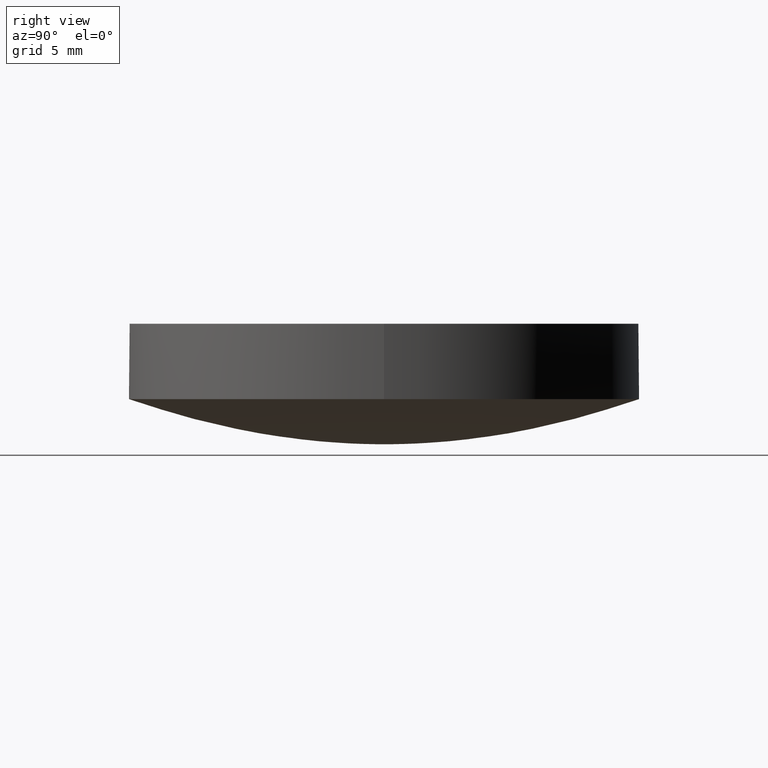
[diagram: clean part render]
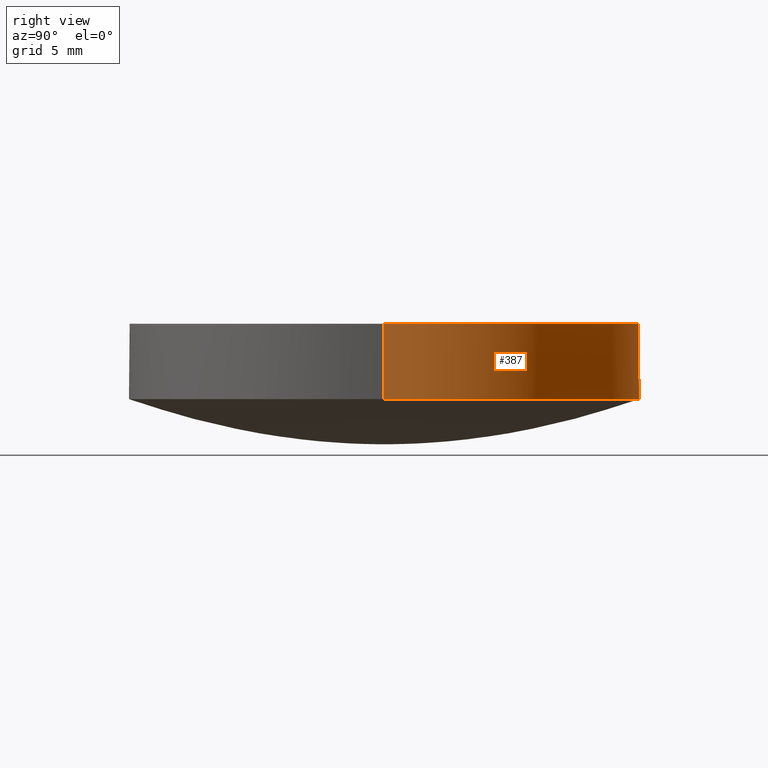
[diagram: same view with one face highlighted and labeled with its STEP entity id]
A machine part, right view. The second image highlights one B-rep face of the part: STEP entity #387.
In plain terms, the highlighted cylindrical surface (partial cylindrical patch) has radius 12.7 mm, axis along (0, 0, 1).
Its self-contained STEP definition (entity closure, byte-faithful):
#3 = EDGE_CURVE ( 'NONE', #450, #67, #276, .T. ) ;
#12 = DIRECTION ( 'NONE',  ( 6.993530863780509846E-17, 4.890947394265059749E-33, 1.000000000000000000 ) ) ;
#26 = CARTESIAN_POINT ( 'NONE',  ( 1.150626804807467557E-15, -8.881784197001250351E-16, 5.999999999999999112 ) ) ;
#54 = CARTESIAN_POINT ( 'NONE',  ( 12.70000000000000107, -8.881784197001250351E-16, 2.247269223239399150 ) ) ;
#57 = DIRECTION ( 'NONE',  ( 6.993530863780509846E-17, 4.890947394265059749E-33, 1.000000000000000000 ) ) ;
#67 = VERTEX_POINT ( 'NONE', #406 ) ;
#75 = DIRECTION ( 'NONE',  ( 6.993530863780509846E-17, 4.890947394265059749E-33, 1.000000000000000000 ) ) ;
#93 = DIRECTION ( 'NONE',  ( 1.000000000000000000, 0.000000000000000000, -6.829619984160658046E-17 ) ) ;
#112 = VERTEX_POINT ( 'NONE', #230 ) ;
#128 = VECTOR ( 'NONE', #12, 1000.000000000000000 ) ;
#134 = CARTESIAN_POINT ( 'NONE',  ( 12.70000000000000107, -8.881784197001250351E-16, 5.999999999999998224 ) ) ;
#135 = VECTOR ( 'NONE', #75, 1000.000000000000000 ) ;
#136 = CARTESIAN_POINT ( 'NONE',  ( 8.881784197001250351E-16, -8.881784197001250351E-16, 2.247269223239400038 ) ) ;
#139 = EDGE_CURVE ( 'NONE', #67, #311, #517, .T. ) ;
#148 = EDGE_CURVE ( 'NONE', #360, #112, #385, .T. ) ;
#158 = DIRECTION ( 'NONE',  ( 3.414809992080330256E-17, -3.414809992080330256E-17, -1.000000000000000000 ) ) ;
#194 = DIRECTION ( 'NONE',  ( -6.993530863780509846E-17, -4.890947394265059749E-33, -1.000000000000000000 ) ) ;
#199 = ORIENTED_EDGE ( 'NONE', *, *, #451, .F. ) ;
#200 = ORIENTED_EDGE ( 'NONE', *, *, #252, .F. ) ;
#228 = ORIENTED_EDGE ( 'NONE', *, *, #139, .T. ) ;
#230 = CARTESIAN_POINT ( 'NONE',  ( 12.70000000000000462, -8.881784197001248379E-16, 2.247269223239400926 ) ) ;
#252 = EDGE_CURVE ( 'NONE', #450, #360, #292, .T. ) ;
#255 = CARTESIAN_POINT ( 'NONE',  ( -12.70000000000000107, 6.671230152170136933E-16, 2.247269223239400038 ) ) ;
#268 = ORIENTED_EDGE ( 'NONE', *, *, #148, .F. ) ;
#270 = AXIS2_PLACEMENT_3D ( 'NONE', #529, #158, #319 ) ;
#276 = LINE ( 'NONE', #407, #135 ) ;
#282 = AXIS2_PLACEMENT_3D ( 'NONE', #509, #503, #392 ) ;
#290 = CARTESIAN_POINT ( 'NONE',  ( -3.851859888774471706E-31, 12.70000000000000284, 2.247269223239400038 ) ) ;
#292 = CIRCLE ( 'NONE', #282, 12.70000000000000284 ) ;
#303 = AXIS2_PLACEMENT_3D ( 'NONE', #136, #57, #93 ) ;
#311 = VERTEX_POINT ( 'NONE', #134 ) ;
#319 = DIRECTION ( 'NONE',  ( -1.000000000000000000, 0.000000000000000000, -3.414809992080328407E-17 ) ) ;
#355 = EDGE_LOOP ( 'NONE', ( #200, #444, #228, #199, #268 ) ) ;
#360 = VERTEX_POINT ( 'NONE', #290 ) ;
#364 = DIRECTION ( 'NONE',  ( 1.000000000000000000, 0.000000000000000000, -6.829619984160658046E-17 ) ) ;
#385 = CIRCLE ( 'NONE', #270, 12.70000000000000284 ) ;
#387 = ADVANCED_FACE ( 'NONE', ( #429 ), #466, .T. ) ;
#392 = DIRECTION ( 'NONE',  ( -1.000000000000000000, 0.000000000000000000, -3.414809992080328407E-17 ) ) ;
#406 = CARTESIAN_POINT ( 'NONE',  ( -12.69999999999999751, 6.671230152170134961E-16, 6.000000000000000000 ) ) ;
#407 = CARTESIAN_POINT ( 'NONE',  ( -12.69999999999999751, 6.671230152170134961E-16, 2.247269223239400926 ) ) ;
#411 = AXIS2_PLACEMENT_3D ( 'NONE', #26, #194, #364 ) ;
#426 = LINE ( 'NONE', #54, #128 ) ;
#429 = FACE_OUTER_BOUND ( 'NONE', #355, .T. ) ;
#444 = ORIENTED_EDGE ( 'NONE', *, *, #3, .T. ) ;
#450 = VERTEX_POINT ( 'NONE', #255 ) ;
#451 = EDGE_CURVE ( 'NONE', #112, #311, #426, .T. ) ;
#466 = CYLINDRICAL_SURFACE ( 'NONE', #303, 12.69999999999999929 ) ;
#503 = DIRECTION ( 'NONE',  ( 3.414809992080330256E-17, -3.414809992080330256E-17, -1.000000000000000000 ) ) ;
#509 = CARTESIAN_POINT ( 'NONE',  ( 1.734723475976807094E-15, -1.345898117247522881E-15, 2.247269223239400482 ) ) ;
#517 = CIRCLE ( 'NONE', #411, 12.69999999999999929 ) ;
#529 = CARTESIAN_POINT ( 'NONE',  ( 1.734723475976807094E-15, -1.345898117247522881E-15, 2.247269223239400482 ) ) ;